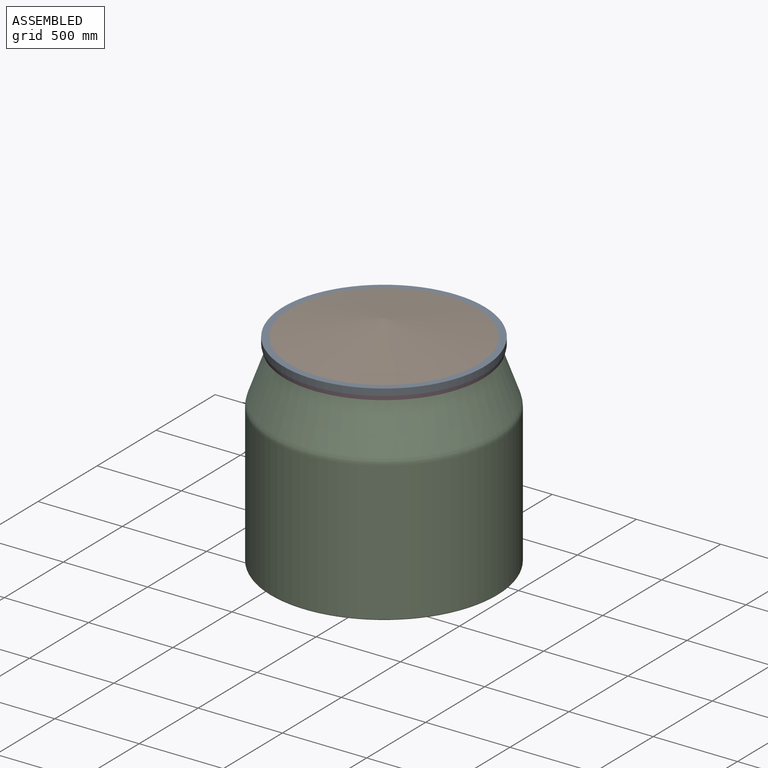
[diagram: assembled view]
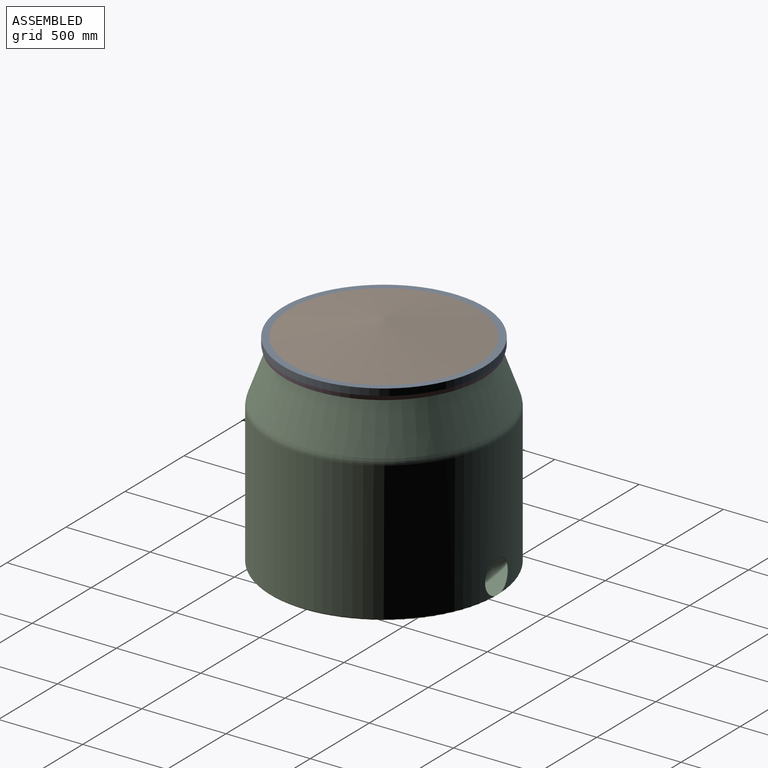
[diagram: assembled view, second angle]
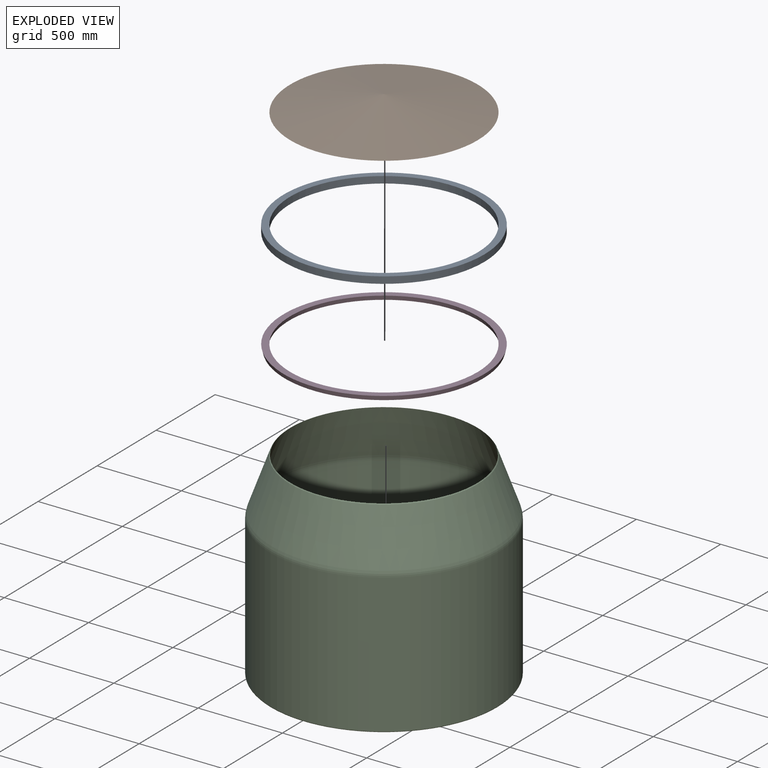
[diagram: exploded view]
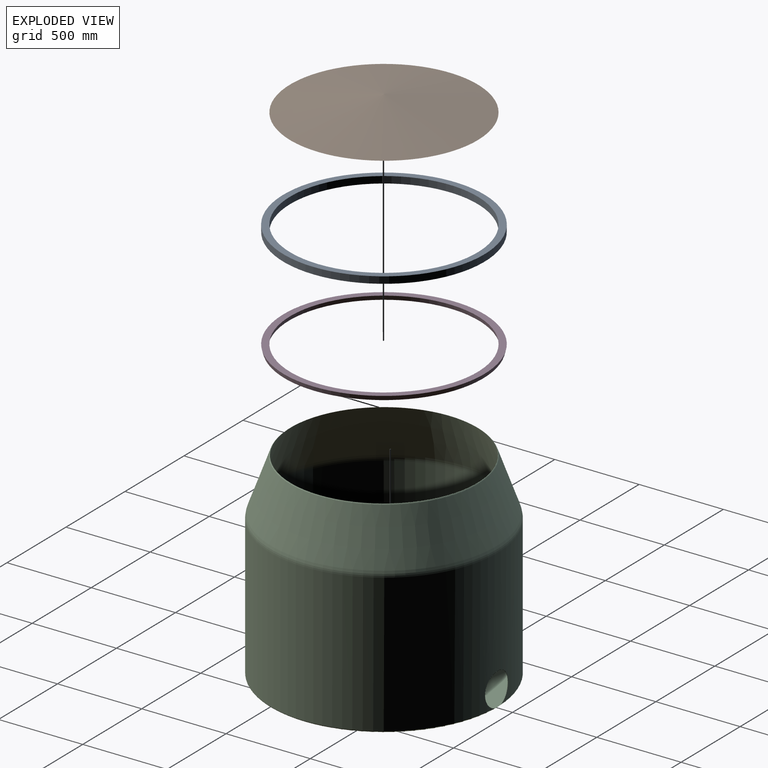
[diagram: exploded view, second angle]
ASSEMBLY  parts=4 mates=3
PART A: 4 faces, bbox 1194.1x1194.1x40 mm
  f0: cylinder r=597.07mm len=1194.15mm, axis (0,0,-1), area 150061mm2, adj f1,f2
  f1: plane 1194.15x1194.15mm, normal (0,0,1), area 145034.4mm2, adj f0,f3
  f2: plane 1194.15x1194.15mm, normal (0,0,-1), area 145034.4mm2, adj f0,f3
  f3: cylinder r=557.07mm len=1114.15mm, axis (0,0,1), area 140007.9mm2, adj f1,f2
PART B: 3 faces, bbox 1114.1x1114.1x98.2 mm
  f0: cone r=557.07mm half-angle=80deg, axis (0,0,-1), area 989973.7mm2, adj f1
  f1: plane 1114.15x1114.15mm, normal (0,0,-1), area 98179.5mm2, adj f0,f2
  f2: cone r=556.21mm half-angle=80deg, axis (0,0,-1), area 890279.6mm2, adj f1
PART C: 11 faces, bbox 1461.2x1461.2x1173.1 mm
  f0: cylinder r=675mm len=1350mm, axis (0,0,-1), area 3460221.9mm2, adj f2,f5,f10
  f1: cylinder r=672.46mm len=1344.92mm, axis (0,0,-1), area 3469890mm2, adj f6,f8,f10
  f2: torus R=667mm, axis (0,0,1), area 52815.4mm2, adj f0,f3,f10
  f3: plane 1334x1334mm, normal (0,0,-1), area 1397660mm2, adj f2
  f4: cone r=675mm half-angle=20deg, axis (0,0,-1), area 1242878.5mm2, adj f5,f9
  f5: torus R=575mm, axis (0,0,-1), area 147601.4mm2, adj f0,f4
  f6: plane 1344.92x1344.92mm, normal (0,0,1), area 1420635.9mm2, adj f1
  f7: cone r=672.61mm half-angle=20deg, axis (0,0,-1), area 1258449.3mm2, adj f8,f9
  f8: torus R=575mm, axis (0,0,-1), area 143320.3mm2, adj f1,f7
  f9: torus R=551.24mm, axis (0,0,1), area 22942.8mm2, adj f4,f7
  f10: cylinder r=97.46mm len=194.92mm, axis (0,1,0), area 1492.3mm2, adj f0,f1,f2
PART D: 4 faces, bbox 1194.1x1194.1x25.4 mm
  f0: cone r=557.07mm half-angle=15deg, axis (0,0,-1), area 92603.5mm2, adj f2,f3
  f1: cone r=597.07mm half-angle=15deg, axis (0,0,1), area 98087.9mm2, adj f2,f3
  f2: plane 1180.54x1180.54mm, normal (0,0,-1), area 95679.9mm2, adj f0,f1
  f3: plane 1194.15x1194.15mm, normal (0,0,1), area 145034.4mm2, adj f0,f1
PLACE A t=(-441.88,1777.89,3168.99)mm
PLACE B t=(-441.88,1777.89,3168.99)mm
PLACE C t=(-441.88,1777.89,2001.11)mm
PLACE D t=(-441.88,1777.89,1996.49)mm
MATE fastened A.f3 <-> C.f0  axis (0,0,-1) through (-441.88,1777.89,3168.99)mm
MATE fastened D.f1 <-> A.f0  axis (0,0,1) through (-441.88,1777.89,3168.99)mm
MATE fastened B.f0 <-> A.f3  axis (0,0,-1) through (-441.88,1777.89,3208.99)mm
